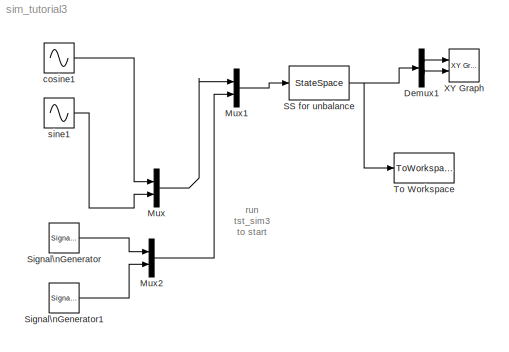
MODEL sim_tutorial3
KIND model
BLOCK [Demux] Demux1
  Outputs = 2
  Ports = [1, 2]
  SID = 1
BLOCK [Mux] Mux
  DisplayOption = bar
  Inputs = 2
  Ports = [2, 1]
  SID = 2
BLOCK [Mux] Mux1
  DisplayOption = bar
  Inputs = 2
  Ports = [2, 1]
  SID = 3
BLOCK [Mux] Mux2
  DisplayOption = bar
  Inputs = 2
  Ports = [2, 1]
  SID = 4
BLOCK [StateSpace] SS for unbalance
  A = a
  B = B
  C = c
  D = D
  InitialCondition = 0
  Ports = [1, 1]
  SID = 5
BLOCK [SignalGenerator] Signal\nGenerator
  Ports = [0, 1]
  SID = 6
  WaveForm = square
BLOCK [SignalGenerator] Signal\nGenerator1
  Frequency = .9
  Ports = [0, 1]
  SID = 7
  WaveForm = square
BLOCK [ToWorkspace] To Workspace
  MaxDataPoints = inf
  Ports = [1]
  SID = 8
  SampleTime = -1
  SaveFormat = Structure With Time
  VariableName = y
BLOCK [Reference] XY Graph  REF=simulink3/Sinks/XY Graph
  Ports = [2]
  SID = 9
  SourceBlock = simulink3/Sinks/XY Graph
  SourceProductBaseCode = SL
  SourceProductName = Simulink
  SourceType = XY scope.
  st = -1
  xmax = 3e-6
  xmin = -3e-6
  ymax = 3e-6
  ymin = -3e-6
BLOCK [Sin] cosine1
  Frequency = 1.21
  Phase = pi/2
  Ports = [0, 1]
  SID = 10
  SampleTime = 0
BLOCK [Sin] sine1
  Ports = [0, 1]
  SID = 11
  SampleTime = 0
ANNOTATION (root): run\ntst_sim3\nto start
LINE Demux1:1 -> XY Graph:1
LINE Demux1:2 -> XY Graph:2
LINE Mux1:1 -> SS for unbalance:1
LINE Mux2:1 -> Mux1:2
LINE Mux:1 -> Mux1:1
NET SS for unbalance:1 -> Demux1:1, To Workspace:1
LINE Signal\nGenerator1:1 -> Mux2:2
LINE Signal\nGenerator:1 -> Mux2:1
LINE cosine1:1 -> Mux:1
LINE sine1:1 -> Mux:2
note: NET lines group one-source signal fan-out (src -> all destinations, sorted); 1:1 wires keep LINE
